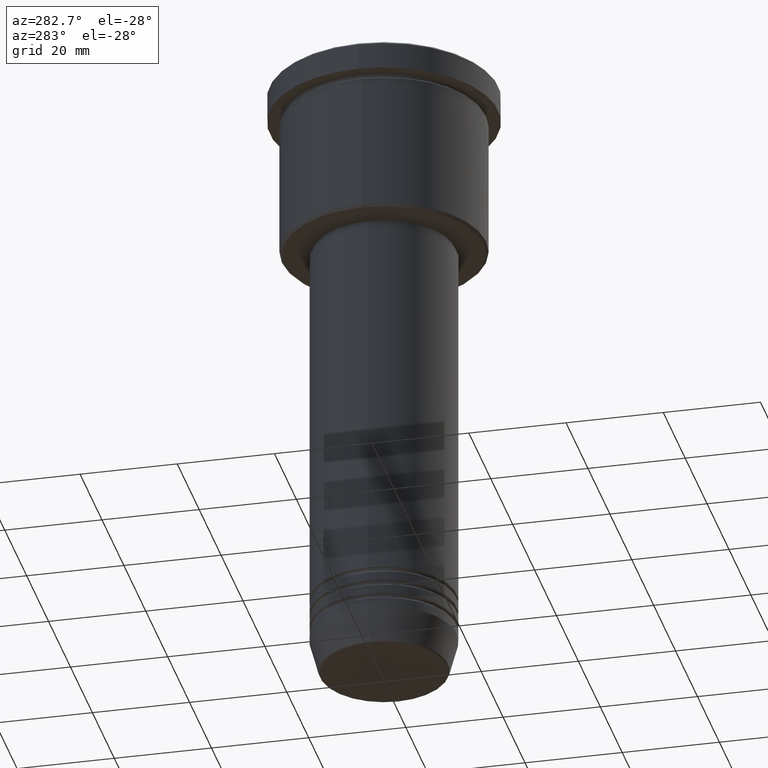
[diagram: clean part render]
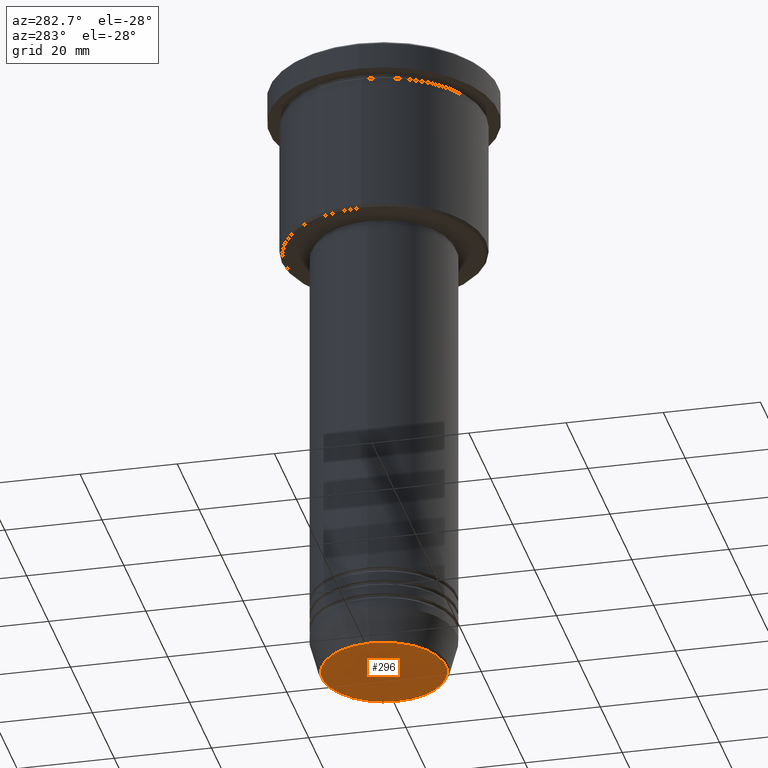
[diagram: same view with one face highlighted and labeled with its STEP entity id]
A machine part, auxiliary view. The second image highlights one B-rep face of the part: STEP entity #296.
In plain terms, the highlighted planar face has unit normal (0, -0, 1).
Its self-contained STEP definition (entity closure, byte-faithful):
#10 = ORIENTED_EDGE ( 'NONE', *, *, #1091, .T. ) ;
#14 = CIRCLE ( 'NONE', #624, 12.74069215899265473 ) ;
#17 = CARTESIAN_POINT ( 'NONE',  ( 12.74069215899265473, 0.000000000000000000, -131.0000000000000000 ) ) ;
#127 = EDGE_LOOP ( 'NONE', ( #10, #293 ) ) ;
#168 = DIRECTION ( 'NONE',  ( 0.000000000000000000, -0.000000000000000000, 1.000000000000000000 ) ) ;
#261 = DIRECTION ( 'NONE',  ( 1.000000000000000000, 0.000000000000000000, 0.000000000000000000 ) ) ;
#293 = ORIENTED_EDGE ( 'NONE', *, *, #1031, .T. ) ;
#296 = ADVANCED_FACE ( 'NONE', ( #445 ), #1163, .F. ) ;
#358 = CARTESIAN_POINT ( 'NONE',  ( 0.000000000000000000, 0.000000000000000000, -131.0000000000000000 ) ) ;
#442 = DIRECTION ( 'NONE',  ( 0.000000000000000000, 0.000000000000000000, -1.000000000000000000 ) ) ;
#445 = FACE_OUTER_BOUND ( 'NONE', #127, .T. ) ;
#603 = DIRECTION ( 'NONE',  ( 0.000000000000000000, 0.000000000000000000, -1.000000000000000000 ) ) ;
#624 = AXIS2_PLACEMENT_3D ( 'NONE', #1152, #603, #891 ) ;
#696 = CARTESIAN_POINT ( 'NONE',  ( -12.74069215899265473, 1.589857736427680640E-15, -131.0000000000000000 ) ) ;
#708 = AXIS2_PLACEMENT_3D ( 'NONE', #1047, #442, #716 ) ;
#716 = DIRECTION ( 'NONE',  ( 1.000000000000000000, 0.000000000000000000, 0.000000000000000000 ) ) ;
#734 = AXIS2_PLACEMENT_3D ( 'NONE', #358, #168, #261 ) ;
#825 = CIRCLE ( 'NONE', #708, 12.74069215899265473 ) ;
#891 = DIRECTION ( 'NONE',  ( 1.000000000000000000, 0.000000000000000000, 0.000000000000000000 ) ) ;
#1007 = VERTEX_POINT ( 'NONE', #17 ) ;
#1031 = EDGE_CURVE ( 'NONE', #1107, #1007, #14, .T. ) ;
#1047 = CARTESIAN_POINT ( 'NONE',  ( 0.000000000000000000, 0.000000000000000000, -131.0000000000000000 ) ) ;
#1091 = EDGE_CURVE ( 'NONE', #1007, #1107, #825, .T. ) ;
#1107 = VERTEX_POINT ( 'NONE', #696 ) ;
#1152 = CARTESIAN_POINT ( 'NONE',  ( 0.000000000000000000, 0.000000000000000000, -131.0000000000000000 ) ) ;
#1163 = PLANE ( 'NONE',  #734 ) ;